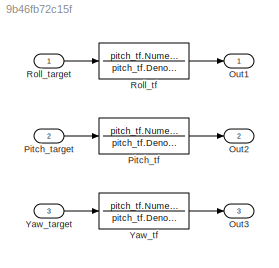
MODEL slx_9b46fb72c15f
KIND model
CONFIG AbsTol = auto
CONFIG EnableMultiTasking = off
CONFIG FixedStep = step_size
CONFIG MaxStep = auto
CONFIG MinStep = auto
CONFIG RelTol = 1e-3
CONFIG SampleTimeConstraint = Unconstrained
CONFIG Solver = FixedStepAuto
CONFIG SolverName = FixedStepAuto
CONFIG StartTime = 0.0
CONFIG StopTime = 10.0
BLOCK [Outport] Out1
BLOCK [Outport] Out2
  Port = 2
BLOCK [Outport] Out3
  Port = 3
BLOCK [Inport] Pitch_target
  Port = 2
BLOCK [TransferFcn] Pitch_tf
  Denominator = pitch_tf.Denominator{1}
  Numerator = pitch_tf.Numerator{1}
BLOCK [Inport] Roll_target
BLOCK [TransferFcn] Roll_tf
  Denominator = pitch_tf.Denominator{1}
  Numerator = pitch_tf.Numerator{1}
BLOCK [Inport] Yaw_target
  Port = 3
BLOCK [TransferFcn] Yaw_tf
  Denominator = pitch_tf.Denominator{1}
  Numerator = pitch_tf.Numerator{1}
LINE Pitch_target:1 -> Pitch_tf:1
LINE Pitch_tf:1 -> Out2:1
LINE Roll_target:1 -> Roll_tf:1
LINE Roll_tf:1 -> Out1:1
LINE Yaw_target:1 -> Yaw_tf:1
LINE Yaw_tf:1 -> Out3:1
